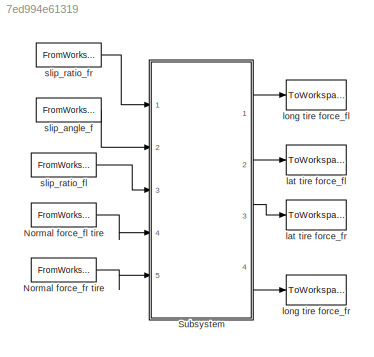
MODEL slx_7ed994e61319
KIND model
CONFIG AbsTol = auto
CONFIG FixedStep = auto
CONFIG MaxStep = auto
CONFIG MinStep = auto
CONFIG RelTol = 1e-3
CONFIG SampleTimeConstraint = Unconstrained
CONFIG Solver = ode45
CONFIG SolverMode = Auto
CONFIG SolverName = ode45
CONFIG StartTime = 0.0
CONFIG StopTime = 10.0
BLOCK [FromWorkspace] Normal force_fl tire
  SampleTime = 0
  VariableName = Fz_fl
  ZeroCross = on
BLOCK [FromWorkspace] Normal force_fr tire
  SampleTime = 0
  VariableName = Fz_fr
  ZeroCross = on
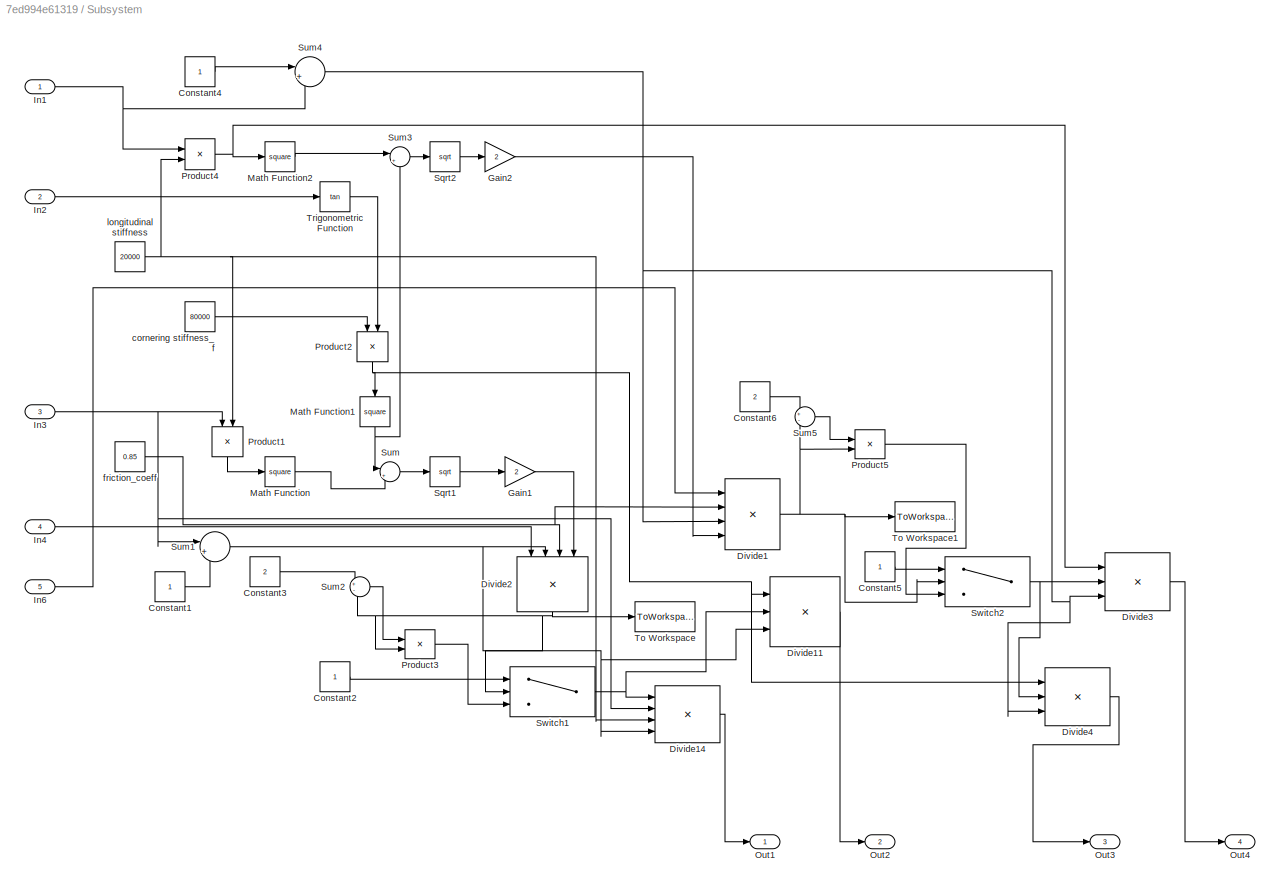
BLOCK [SubSystem] Subsystem
  Ports = [5, 4]
  RequestExecContextInheritance = off
BLOCK [Constant] Subsystem/Constant1
BLOCK [Constant] Subsystem/Constant2
BLOCK [Constant] Subsystem/Constant3
  Value = 2
BLOCK [Constant] Subsystem/Constant4
BLOCK [Constant] Subsystem/Constant5
BLOCK [Constant] Subsystem/Constant6
  Value = 2
BLOCK [Product] Subsystem/Divide1
  InputSameDT = off
  Inputs = ***/
  OutDataTypeStr = Inherit: Inherit via internal rule
  Ports = [4, 1]
  RndMeth = Floor
  SaturateOnIntegerOverflow = off
BLOCK [Product] Subsystem/Divide11
  InputSameDT = off
  Inputs = **/
  OutDataTypeStr = Inherit: Inherit via internal rule
  Ports = [3, 1]
  RndMeth = Floor
  SaturateOnIntegerOverflow = off
BLOCK [Product] Subsystem/Divide14
  InputSameDT = off
  Inputs = ***/
  OutDataTypeStr = Inherit: Inherit via internal rule
  Ports = [4, 1]
  RndMeth = Floor
  SaturateOnIntegerOverflow = off
BLOCK [Product] Subsystem/Divide2
  InputSameDT = off
  Inputs = ***/
  OutDataTypeStr = Inherit: Inherit via internal rule
  Ports = [4, 1]
  RndMeth = Floor
  SaturateOnIntegerOverflow = off
BLOCK [Product] Subsystem/Divide3
  InputSameDT = off
  Inputs = **/
  OutDataTypeStr = Inherit: Inherit via internal rule
  Ports = [3, 1]
  RndMeth = Floor
  SaturateOnIntegerOverflow = off
BLOCK [Product] Subsystem/Divide4
  InputSameDT = off
  Inputs = **/
  OutDataTypeStr = Inherit: Inherit via internal rule
  Ports = [3, 1]
  RndMeth = Floor
  SaturateOnIntegerOverflow = off
BLOCK [Gain] Subsystem/Gain1
  Gain = 2
  OutDataTypeStr = Inherit: Inherit via internal rule
  ParamDataTypeStr = Inherit: Inherit via internal rule
  SaturateOnIntegerOverflow = off
BLOCK [Gain] Subsystem/Gain2
  Gain = 2
  OutDataTypeStr = Inherit: Inherit via internal rule
  ParamDataTypeStr = Inherit: Inherit via internal rule
  SaturateOnIntegerOverflow = off
BLOCK [Inport] Subsystem/In1
  IconDisplay = Port number
BLOCK [Inport] Subsystem/In2
  IconDisplay = Port number
  Port = 2
BLOCK [Inport] Subsystem/In3
  IconDisplay = Port number
  Port = 3
BLOCK [Inport] Subsystem/In4
  IconDisplay = Port number
  Port = 4
BLOCK [Inport] Subsystem/In6
  IconDisplay = Port number
  Port = 5
BLOCK [Math] Subsystem/Math Function
  Operator = square
  Ports = [1, 1]
BLOCK [Math] Subsystem/Math Function1
  Operator = square
  Ports = [1, 1]
BLOCK [Math] Subsystem/Math Function2
  Operator = square
  Ports = [1, 1]
BLOCK [Outport] Subsystem/Out1
  IconDisplay = Port number
BLOCK [Outport] Subsystem/Out2
  IconDisplay = Port number
  Port = 2
BLOCK [Outport] Subsystem/Out3
  IconDisplay = Port number
  Port = 3
BLOCK [Outport] Subsystem/Out4
  IconDisplay = Port number
  Port = 4
BLOCK [Product] Subsystem/Product1
  InputSameDT = off
  OutDataTypeStr = Inherit: Inherit via internal rule
  Ports = [2, 1]
  RndMeth = Floor
  SaturateOnIntegerOverflow = off
BLOCK [Product] Subsystem/Product2
  InputSameDT = off
  OutDataTypeStr = Inherit: Inherit via internal rule
  Ports = [2, 1]
  RndMeth = Floor
  SaturateOnIntegerOverflow = off
BLOCK [Product] Subsystem/Product3
  InputSameDT = off
  OutDataTypeStr = Inherit: Inherit via internal rule
  Ports = [2, 1]
  RndMeth = Floor
  SaturateOnIntegerOverflow = off
BLOCK [Product] Subsystem/Product4
  InputSameDT = off
  OutDataTypeStr = Inherit: Inherit via internal rule
  Ports = [2, 1]
  RndMeth = Floor
  SaturateOnIntegerOverflow = off
BLOCK [Product] Subsystem/Product5
  InputSameDT = off
  OutDataTypeStr = Inherit: Inherit via internal rule
  Ports = [2, 1]
  RndMeth = Floor
  SaturateOnIntegerOverflow = off
BLOCK [Sqrt] Subsystem/Sqrt1
BLOCK [Sqrt] Subsystem/Sqrt2
BLOCK [Sum] Subsystem/Sum
  IconShape = round
  InputSameDT = off
  Inputs = |++
  OutDataTypeStr = Inherit: Inherit via internal rule
  Ports = [2, 1]
  SaturateOnIntegerOverflow = off
BLOCK [Sum] Subsystem/Sum1
  IconShape = round
  InputSameDT = off
  Inputs = |++
  OutDataTypeStr = Inherit: Inherit via internal rule
  Ports = [2, 1]
  SaturateOnIntegerOverflow = off
BLOCK [Sum] Subsystem/Sum2
  IconShape = round
  InputSameDT = off
  Inputs = +-
  OutDataTypeStr = Inherit: Inherit via internal rule
  Ports = [2, 1]
  SaturateOnIntegerOverflow = off
BLOCK [Sum] Subsystem/Sum3
  IconShape = round
  InputSameDT = off
  Inputs = |++
  OutDataTypeStr = Inherit: Inherit via internal rule
  Ports = [2, 1]
  SaturateOnIntegerOverflow = off
BLOCK [Sum] Subsystem/Sum4
  IconShape = round
  InputSameDT = off
  Inputs = |++
  OutDataTypeStr = Inherit: Inherit via internal rule
  Ports = [2, 1]
  SaturateOnIntegerOverflow = off
BLOCK [Sum] Subsystem/Sum5
  IconShape = round
  InputSameDT = off
  Inputs = +-
  OutDataTypeStr = Inherit: Inherit via internal rule
  Ports = [2, 1]
  SaturateOnIntegerOverflow = off
BLOCK [Switch] Subsystem/Switch1
  InputSameDT = off
  SaturateOnIntegerOverflow = off
  Threshold = 1
BLOCK [Switch] Subsystem/Switch2
  InputSameDT = off
  SaturateOnIntegerOverflow = off
  Threshold = 1
BLOCK [ToWorkspace] Subsystem/To Workspace
  FixptAsFi = on
  MaxDataPoints = inf
  Ports = [1]
  SampleTime = -1
  Save2DSignal = 3-D array (concatenate along third dimension)
  SaveFormat = Timeseries
  VariableName = lambda_fl
BLOCK [ToWorkspace] Subsystem/To Workspace1
  FixptAsFi = on
  MaxDataPoints = inf
  Ports = [1]
  SampleTime = -1
  Save2DSignal = 3-D array (concatenate along third dimension)
  SaveFormat = Timeseries
  VariableName = lambda_fr
BLOCK [Trigonometry] Subsystem/Trigonometric Function
  Operator = tan
  Ports = [1, 1]
BLOCK [Constant] Subsystem/cornering stiffness_f
  Value = 80000
BLOCK [Constant] Subsystem/friction_coeff
  Value = 0.85
BLOCK [Constant] Subsystem/longitudinal stiffness
  Value = 20000
BLOCK [ToWorkspace] lat tire force_fl
  FixptAsFi = on
  MaxDataPoints = inf
  Ports = [1]
  SampleTime = -1
  Save2DSignal = 3-D array (concatenate along third dimension)
  SaveFormat = Timeseries
  VariableName = F_yfl
BLOCK [ToWorkspace] lat tire force_fr
  FixptAsFi = on
  MaxDataPoints = inf
  Ports = [1]
  SampleTime = -1
  Save2DSignal = 3-D array (concatenate along third dimension)
  SaveFormat = Timeseries
  VariableName = F_yfr
BLOCK [ToWorkspace] long tire force_fl
  FixptAsFi = on
  MaxDataPoints = inf
  Ports = [1]
  SampleTime = -1
  Save2DSignal = 3-D array (concatenate along third dimension)
  SaveFormat = Timeseries
  VariableName = F_xfl
BLOCK [ToWorkspace] long tire force_fr
  FixptAsFi = on
  MaxDataPoints = inf
  Ports = [1]
  SampleTime = -1
  Save2DSignal = 3-D array (concatenate along third dimension)
  SaveFormat = Timeseries
  VariableName = F_xfr
BLOCK [FromWorkspace] slip_angle_f
  SampleTime = 0
  VariableName = slip_angle_f
  ZeroCross = on
BLOCK [FromWorkspace] slip_ratio_fl
  SampleTime = 0
  VariableName = slip_ratio_fl
  ZeroCross = on
BLOCK [FromWorkspace] slip_ratio_fr
  SampleTime = 0
  VariableName = slip_ratio_fr
  ZeroCross = on
LINE Normal force_fl tire:1 -> Subsystem:4
LINE Normal force_fr tire:1 -> Subsystem:5
LINE Subsystem/Constant1:1 -> Subsystem/Sum1:2
LINE Subsystem/Constant2:1 -> Subsystem/Switch1:1
LINE Subsystem/Constant3:1 -> Subsystem/Sum2:1
LINE Subsystem/Constant4:1 -> Subsystem/Sum4:1
LINE Subsystem/Constant5:1 -> Subsystem/Switch2:1
LINE Subsystem/Constant6:1 -> Subsystem/Sum5:1
LINE Subsystem/Divide11:1 -> Subsystem/Out2:1
LINE Subsystem/Divide14:1 -> Subsystem/Out1:1
NET Subsystem/Divide1:1 -> Subsystem/Product5:2, Subsystem/Sum5:2, Subsystem/Switch2:2, Subsystem/To Workspace1:1
NET Subsystem/Divide2:1 -> Subsystem/Product3:2, Subsystem/Sum2:2, Subsystem/Switch1:2, Subsystem/To Workspace:1
LINE Subsystem/Divide3:1 -> Subsystem/Out4:1
LINE Subsystem/Divide4:1 -> Subsystem/Out3:1
LINE Subsystem/Gain1:1 -> Subsystem/Divide2:4
LINE Subsystem/Gain2:1 -> Subsystem/Divide1:4
NET Subsystem/In1:1 -> Subsystem/Product4:1, Subsystem/Sum4:2
LINE Subsystem/In2:1 -> Subsystem/Trigonometric Function:1
NET Subsystem/In3:1 -> Subsystem/Divide14:2, Subsystem/Product1:1, Subsystem/Sum1:1
LINE Subsystem/In4:1 -> Subsystem/Divide2:1
LINE Subsystem/In6:1 -> Subsystem/Divide1:1
NET Subsystem/Math Function1:1 -> Subsystem/Sum3:2, Subsystem/Sum:1
LINE Subsystem/Math Function2:1 -> Subsystem/Sum3:1
LINE Subsystem/Math Function:1 -> Subsystem/Sum:2
LINE Subsystem/Product1:1 -> Subsystem/Math Function:1
NET Subsystem/Product2:1 -> Subsystem/Divide11:1, Subsystem/Divide4:1, Subsystem/Math Function1:1
LINE Subsystem/Product3:1 -> Subsystem/Switch1:3
NET Subsystem/Product4:1 -> Subsystem/Divide3:1, Subsystem/Math Function2:1
LINE Subsystem/Product5:1 -> Subsystem/Switch2:3
LINE Subsystem/Sqrt1:1 -> Subsystem/Gain1:1
LINE Subsystem/Sqrt2:1 -> Subsystem/Gain2:1
NET Subsystem/Sum1:1 -> Subsystem/Divide11:3, Subsystem/Divide14:4, Subsystem/Divide2:2
LINE Subsystem/Sum2:1 -> Subsystem/Product3:1
LINE Subsystem/Sum3:1 -> Subsystem/Sqrt2:1
NET Subsystem/Sum4:1 -> Subsystem/Divide1:3, Subsystem/Divide3:3, Subsystem/Divide4:3
LINE Subsystem/Sum5:1 -> Subsystem/Product5:1
LINE Subsystem/Sum:1 -> Subsystem/Sqrt1:1
NET Subsystem/Switch1:1 -> Subsystem/Divide11:2, Subsystem/Divide14:1
NET Subsystem/Switch2:1 -> Subsystem/Divide3:2, Subsystem/Divide4:2
LINE Subsystem/Trigonometric Function:1 -> Subsystem/Product2:2
LINE Subsystem/cornering stiffness_f:1 -> Subsystem/Product2:1
NET Subsystem/friction_coeff:1 -> Subsystem/Divide1:2, Subsystem/Divide2:3
NET Subsystem/longitudinal stiffness:1 -> Subsystem/Divide14:3, Subsystem/Product1:2, Subsystem/Product4:2
LINE Subsystem:1 -> long tire force_fl:1
LINE Subsystem:2 -> lat tire force_fl:1
LINE Subsystem:3 -> lat tire force_fr:1
LINE Subsystem:4 -> long tire force_fr:1
LINE slip_angle_f:1 -> Subsystem:2
LINE slip_ratio_fl:1 -> Subsystem:3
LINE slip_ratio_fr:1 -> Subsystem:1
note: NET lines group one-source signal fan-out (src -> all destinations, sorted); 1:1 wires keep LINE
